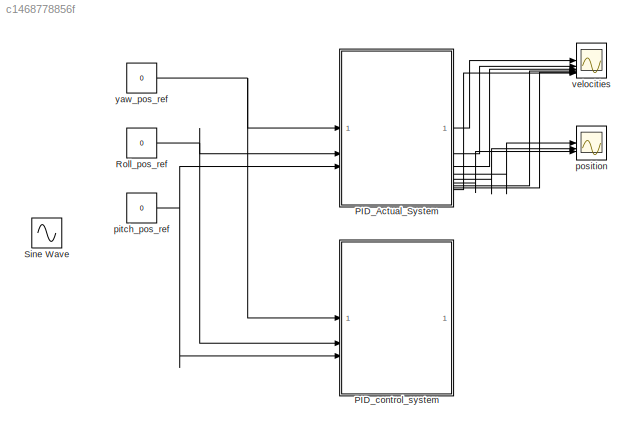
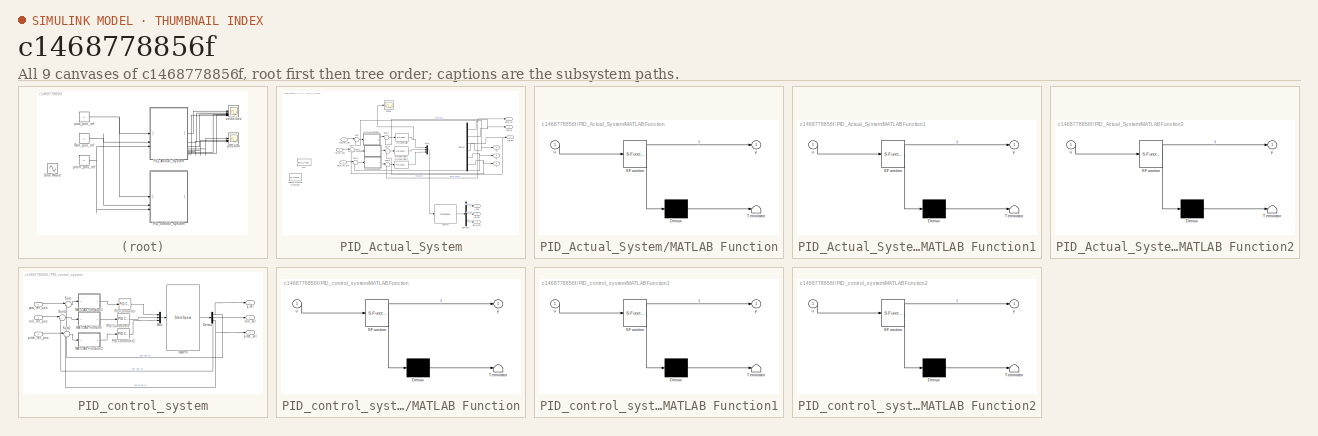
[diagram: thumbnail index - all 9 canvases of the model, root first then tree order]
MODEL slx_c1468778856f
KIND model
CONFIG AbsTol = auto
CONFIG EnableMultiTasking = off
CONFIG FixedStep = auto
CONFIG MaxStep = auto
CONFIG MinStep = auto
CONFIG RelTol = 1e-3
CONFIG SampleTimeConstraint = Unconstrained
CONFIG SolverName = VariableStepAuto
CONFIG StartTime = 0.0
CONFIG StopTime = 150
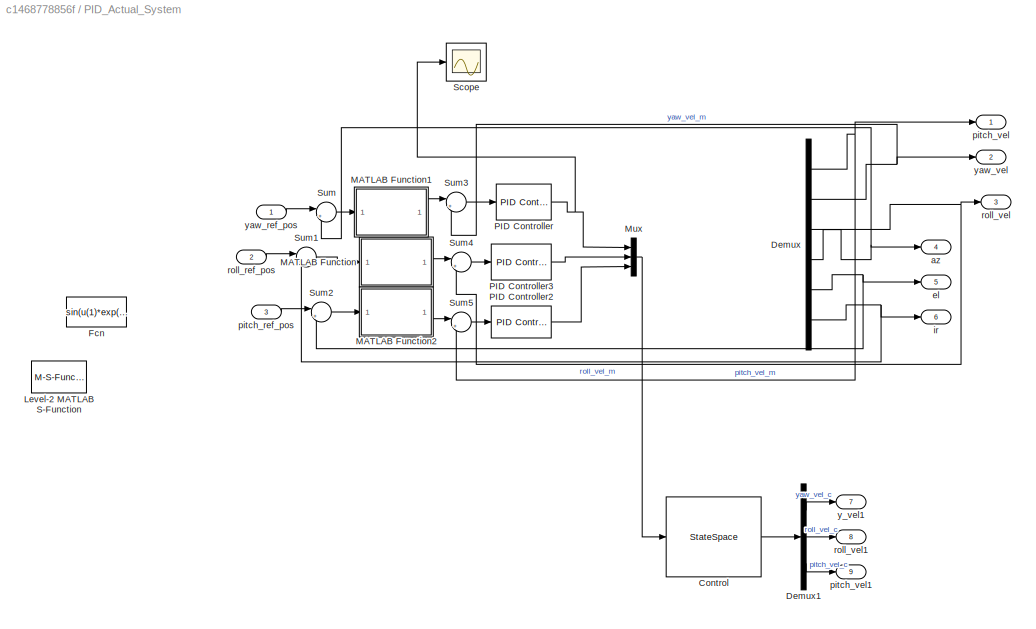
BLOCK [SubSystem] PID_Actual_System
BLOCK [StateSpace] PID_Actual_System/Control
  A = Ac
  B = Bc
  C = Cc
  D = Dc
  InitialCondition = zeros(6,1)
BLOCK [Demux] PID_Actual_System/Demux
  Outputs = 6
BLOCK [Demux] PID_Actual_System/Demux1
  Outputs = 3
BLOCK [Fcn] PID_Actual_System/Fcn
  Expr = sin(u(1)*exp(2.3*(-u(2))))
BLOCK [M-S-Function] PID_Actual_System/Level-2 MATLAB S-Function
BLOCK [SubSystem] PID_Actual_System/MATLAB Function
  ErrorFcn = Stateflow.Translate.translate
  LibrarySourceBlock = simulink/User-Defined\nFunctions/MATLAB Function
  PermitHierarchicalResolution = ExplicitOnly
  SFBlockType = MATLAB Function
  TreatAsAtomicUnit = on
BLOCK [Demux] PID_Actual_System/MATLAB Function/ Demux 
  Outputs = 1
BLOCK [S-Function] PID_Actual_System/MATLAB Function/ SFunction 
  EnableBusSupport = off
  FunctionName = sf_sfun
  PortCounts = [1 2]
  SFcnIsStateOwnerBlock = off
  SFunctionDeploymentMode = off
  Tag = Stateflow S-Function 2
BLOCK [Terminator] PID_Actual_System/MATLAB Function/ Terminator 
BLOCK [Inport] PID_Actual_System/MATLAB Function/u
BLOCK [Outport] PID_Actual_System/MATLAB Function/y
BLOCK [SubSystem] PID_Actual_System/MATLAB Function1
  ErrorFcn = Stateflow.Translate.translate
  LibrarySourceBlock = simulink/User-Defined\nFunctions/MATLAB Function
  PermitHierarchicalResolution = ExplicitOnly
  SFBlockType = MATLAB Function
  TreatAsAtomicUnit = on
BLOCK [Demux] PID_Actual_System/MATLAB Function1/ Demux 
  Outputs = 1
BLOCK [S-Function] PID_Actual_System/MATLAB Function1/ SFunction 
  EnableBusSupport = off
  FunctionName = sf_sfun
  PortCounts = [1 2]
  SFcnIsStateOwnerBlock = off
  SFunctionDeploymentMode = off
  Tag = Stateflow S-Function 1
BLOCK [Terminator] PID_Actual_System/MATLAB Function1/ Terminator 
BLOCK [Inport] PID_Actual_System/MATLAB Function1/u
BLOCK [Outport] PID_Actual_System/MATLAB Function1/y
BLOCK [SubSystem] PID_Actual_System/MATLAB Function2
  ErrorFcn = Stateflow.Translate.translate
  LibrarySourceBlock = simulink/User-Defined\nFunctions/MATLAB Function
  PermitHierarchicalResolution = ExplicitOnly
  SFBlockType = MATLAB Function
  TreatAsAtomicUnit = on
BLOCK [Demux] PID_Actual_System/MATLAB Function2/ Demux 
  Outputs = 1
BLOCK [S-Function] PID_Actual_System/MATLAB Function2/ SFunction 
  EnableBusSupport = off
  FunctionName = sf_sfun
  PortCounts = [1 2]
  SFcnIsStateOwnerBlock = off
  SFunctionDeploymentMode = off
  Tag = Stateflow S-Function 3
BLOCK [Terminator] PID_Actual_System/MATLAB Function2/ Terminator 
BLOCK [Inport] PID_Actual_System/MATLAB Function2/u
BLOCK [Outport] PID_Actual_System/MATLAB Function2/y
BLOCK [Mux] PID_Actual_System/Mux
  DisplayOption = bar
  Inputs = 3
BLOCK [Reference] PID_Actual_System/PID Controller  REF=slpidlib/PID Controller
  LibrarySourceBlock = simulink/Continuous/PID Controller
  SourceBlock = slpidlib/PID Controller
  SourceType = PID 1dof
BLOCK [Reference] PID_Actual_System/PID Controller2  REF=slpidlib/PID Controller
  LibrarySourceBlock = simulink/Continuous/PID Controller
  SourceBlock = slpidlib/PID Controller
  SourceType = PID 1dof
BLOCK [Reference] PID_Actual_System/PID Controller3  REF=slpidlib/PID Controller
  LibrarySourceBlock = simulink/Continuous/PID Controller
  SourceBlock = slpidlib/PID Controller
  SourceType = PID 1dof
BLOCK [Scope] PID_Actual_System/Scope
  Floating = off
  NumInputPorts = 1
  ScopeSpecificationString = Simulink.scopes.TimeScopeBlockCfg('CurrentConfiguration', extmgr.ConfigurationSet(extmgr.Configuration('Core','General UI',true),extmgr.Configuration('Core','Source UI',true),extmgr.Configuration('Sources','WiredSimulink',true,'DataLoggingVariableName','ScopeData2'),extmgr.Configuration('Visuals','Time Domain',true,'SerializedDisplays',{struct('MinYLimReal','-2.50005','MaxYLimReal','22.50001','YLa...<+1434ch>
BLOCK [Sum] PID_Actual_System/Sum
  Inputs = |+-
BLOCK [Sum] PID_Actual_System/Sum1
  Inputs = |+-
BLOCK [Sum] PID_Actual_System/Sum2
  Inputs = |+-
BLOCK [Sum] PID_Actual_System/Sum3
  Inputs = |+-
BLOCK [Sum] PID_Actual_System/Sum4
  Inputs = |+-
BLOCK [Sum] PID_Actual_System/Sum5
  Inputs = |+-
BLOCK [Outport] PID_Actual_System/az
  Port = 4
BLOCK [Outport] PID_Actual_System/el
  Port = 5
BLOCK [Outport] PID_Actual_System/ir
  Port = 6
BLOCK [Inport] PID_Actual_System/pitch_ref_pos
  Port = 3
BLOCK [Outport] PID_Actual_System/pitch_vel
BLOCK [Outport] PID_Actual_System/pitch_vel1
  Port = 9
BLOCK [Inport] PID_Actual_System/roll_ref_pos
  Port = 2
BLOCK [Outport] PID_Actual_System/roll_vel
  Port = 3
BLOCK [Outport] PID_Actual_System/roll_vel1
  Port = 8
BLOCK [Outport] PID_Actual_System/y_vel1
  Port = 7
BLOCK [Inport] PID_Actual_System/yaw_ref_pos
BLOCK [Outport] PID_Actual_System/yaw_vel
  Port = 2
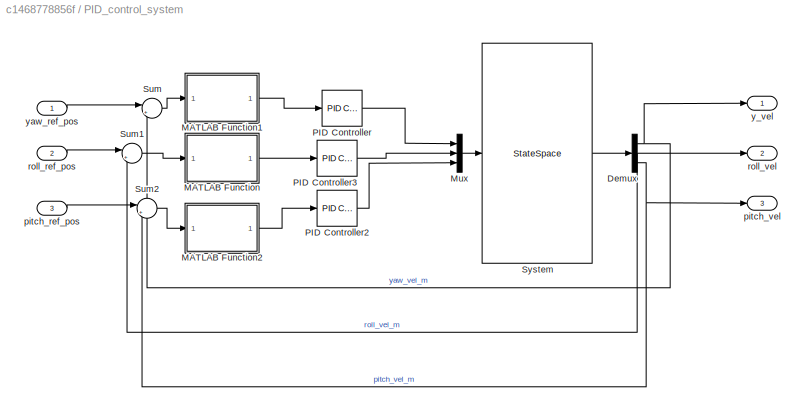
BLOCK [SubSystem] PID_control_system
  Commented = on
BLOCK [Demux] PID_control_system/Demux
  Outputs = 3
BLOCK [SubSystem] PID_control_system/MATLAB Function
  ErrorFcn = Stateflow.Translate.translate
  LibrarySourceBlock = simulink/User-Defined\nFunctions/MATLAB Function
  PermitHierarchicalResolution = ExplicitOnly
  SFBlockType = MATLAB Function
  TreatAsAtomicUnit = on
BLOCK [Demux] PID_control_system/MATLAB Function/ Demux 
  Outputs = 1
BLOCK [S-Function] PID_control_system/MATLAB Function/ SFunction 
  EnableBusSupport = off
  FunctionName = sf_sfun
  PortCounts = [1 2]
  SFcnIsStateOwnerBlock = off
  SFunctionDeploymentMode = off
  Tag = Stateflow S-Function 4
BLOCK [Terminator] PID_control_system/MATLAB Function/ Terminator 
BLOCK [Inport] PID_control_system/MATLAB Function/u
BLOCK [Outport] PID_control_system/MATLAB Function/y
BLOCK [SubSystem] PID_control_system/MATLAB Function1
  ErrorFcn = Stateflow.Translate.translate
  LibrarySourceBlock = simulink/User-Defined\nFunctions/MATLAB Function
  PermitHierarchicalResolution = ExplicitOnly
  SFBlockType = MATLAB Function
  TreatAsAtomicUnit = on
BLOCK [Demux] PID_control_system/MATLAB Function1/ Demux 
  Outputs = 1
BLOCK [S-Function] PID_control_system/MATLAB Function1/ SFunction 
  EnableBusSupport = off
  FunctionName = sf_sfun
  PortCounts = [1 2]
  SFcnIsStateOwnerBlock = off
  SFunctionDeploymentMode = off
  Tag = Stateflow S-Function 5
BLOCK [Terminator] PID_control_system/MATLAB Function1/ Terminator 
BLOCK [Inport] PID_control_system/MATLAB Function1/u
BLOCK [Outport] PID_control_system/MATLAB Function1/y
BLOCK [SubSystem] PID_control_system/MATLAB Function2
  ErrorFcn = Stateflow.Translate.translate
  LibrarySourceBlock = simulink/User-Defined\nFunctions/MATLAB Function
  PermitHierarchicalResolution = ExplicitOnly
  SFBlockType = MATLAB Function
  TreatAsAtomicUnit = on
BLOCK [Demux] PID_control_system/MATLAB Function2/ Demux 
  Outputs = 1
BLOCK [S-Function] PID_control_system/MATLAB Function2/ SFunction 
  EnableBusSupport = off
  FunctionName = sf_sfun
  PortCounts = [1 2]
  SFcnIsStateOwnerBlock = off
  SFunctionDeploymentMode = off
  Tag = Stateflow S-Function 6
BLOCK [Terminator] PID_control_system/MATLAB Function2/ Terminator 
BLOCK [Inport] PID_control_system/MATLAB Function2/u
BLOCK [Outport] PID_control_system/MATLAB Function2/y
BLOCK [Mux] PID_control_system/Mux
  DisplayOption = bar
  Inputs = 3
BLOCK [Reference] PID_control_system/PID Controller  REF=slpidlib/PID Controller
  LibrarySourceBlock = simulink/Continuous/PID Controller
  SourceBlock = slpidlib/PID Controller
  SourceType = PID 1dof
BLOCK [Reference] PID_control_system/PID Controller2  REF=slpidlib/PID Controller
  LibrarySourceBlock = simulink/Continuous/PID Controller
  SourceBlock = slpidlib/PID Controller
  SourceType = PID 1dof
BLOCK [Reference] PID_control_system/PID Controller3  REF=slpidlib/PID Controller
  LibrarySourceBlock = simulink/Continuous/PID Controller
  SourceBlock = slpidlib/PID Controller
  SourceType = PID 1dof
BLOCK [Sum] PID_control_system/Sum
  Inputs = |+-
BLOCK [Sum] PID_control_system/Sum1
  Inputs = |+-
BLOCK [Sum] PID_control_system/Sum2
  Inputs = |+-
BLOCK [StateSpace] PID_control_system/System
  A = Ac
  B = Bc
  C = Cc
  D = Dc
  InitialCondition = zeros(6,1)
BLOCK [Inport] PID_control_system/pitch_ref_pos
  Port = 3
BLOCK [Outport] PID_control_system/pitch_vel
  Port = 3
BLOCK [Inport] PID_control_system/roll_ref_pos
  Port = 2
BLOCK [Outport] PID_control_system/roll_vel
  Port = 2
BLOCK [Outport] PID_control_system/y_vel
BLOCK [Inport] PID_control_system/yaw_ref_pos
BLOCK [Constant] Roll_pos_ref
  Value = 0
BLOCK [Sin] Sine Wave
  IOType = siggen
  SampleTime = 0
BLOCK [Constant] pitch_pos_ref
  Value = 0
BLOCK [Scope] position
  Floating = off
  NumInputPorts = 3
  ScopeSpecificationString = Simulink.scopes.TimeScopeBlockCfg('CurrentConfiguration', extmgr.ConfigurationSet(extmgr.Configuration('Core','General UI',true),extmgr.Configuration('Core','Source UI',true),extmgr.Configuration('Sources','WiredSimulink',true,'DataLoggingVariableName','ScopeData1'),extmgr.Configuration('Visuals','Time Domain',true,'SerializedDisplays',{struct('MinYLimReal','-34.6309','MaxYLimReal','311.67571','YL...<+1471ch>
BLOCK [Scope] velocities
  Floating = off
  NumInputPorts = 6
  ScopeSpecificationString = Simulink.scopes.TimeScopeBlockCfg('CurrentConfiguration', extmgr.ConfigurationSet(extmgr.Configuration('Core','General UI',true),extmgr.Configuration('Core','Source UI',true),extmgr.Configuration('Sources','WiredSimulink',true),extmgr.Configuration('Visuals','Time Domain',true,'SerializedDisplays',{struct('MinYLimReal','-6.41591','MaxYLimReal','0.71999','YLabelReal','','MinYLimMag','0.00000','MaxY...<+1356ch>
BLOCK [Constant] yaw_pos_ref
  Value = 0
LINE PID_Actual_System/Control:1 -> PID_Actual_System/Demux1:1
LINE PID_Actual_System/Demux1:1 -> PID_Actual_System/y_vel1:1
LINE PID_Actual_System/Demux1:2 -> PID_Actual_System/roll_vel1:1
LINE PID_Actual_System/Demux1:3 -> PID_Actual_System/pitch_vel1:1
NET PID_Actual_System/Demux:1 -> PID_Actual_System/Sum5:2, PID_Actual_System/pitch_vel:1
NET PID_Actual_System/Demux:2 -> PID_Actual_System/Sum3:2, PID_Actual_System/yaw_vel:1
NET PID_Actual_System/Demux:3 -> PID_Actual_System/Sum4:2, PID_Actual_System/roll_vel:1
NET PID_Actual_System/Demux:4 -> PID_Actual_System/Sum:2, PID_Actual_System/az:1
NET PID_Actual_System/Demux:5 -> PID_Actual_System/Sum2:2, PID_Actual_System/el:1
NET PID_Actual_System/Demux:6 -> PID_Actual_System/Sum1:2, PID_Actual_System/ir:1
LINE PID_Actual_System/MATLAB Function1:1 -> PID_Actual_System/Sum3:1
LINE PID_Actual_System/MATLAB Function2:1 -> PID_Actual_System/Sum5:1
LINE PID_Actual_System/MATLAB Function:1 -> PID_Actual_System/Sum4:1
LINE PID_Actual_System/Mux:1 -> PID_Actual_System/Control:1
LINE PID_Actual_System/PID Controller2:1 -> PID_Actual_System/Mux:3
LINE PID_Actual_System/PID Controller3:1 -> PID_Actual_System/Mux:2
NET PID_Actual_System/PID Controller:1 -> PID_Actual_System/Mux:1, PID_Actual_System/Scope:1
LINE PID_Actual_System/Sum1:1 -> PID_Actual_System/MATLAB Function:1
LINE PID_Actual_System/Sum2:1 -> PID_Actual_System/MATLAB Function2:1
LINE PID_Actual_System/Sum3:1 -> PID_Actual_System/PID Controller:1
LINE PID_Actual_System/Sum4:1 -> PID_Actual_System/PID Controller3:1
LINE PID_Actual_System/Sum5:1 -> PID_Actual_System/PID Controller2:1
LINE PID_Actual_System/Sum:1 -> PID_Actual_System/MATLAB Function1:1
LINE PID_Actual_System/pitch_ref_pos:1 -> PID_Actual_System/Sum2:1
LINE PID_Actual_System/roll_ref_pos:1 -> PID_Actual_System/Sum1:1
LINE PID_Actual_System/yaw_ref_pos:1 -> PID_Actual_System/Sum:1
LINE PID_Actual_System:1 -> velocities:1
LINE PID_Actual_System:2 -> velocities:2
LINE PID_Actual_System:3 -> velocities:3
LINE PID_Actual_System:4 -> position:1
LINE PID_Actual_System:5 -> position:2
LINE PID_Actual_System:6 -> position:3
LINE PID_Actual_System:7 -> velocities:4
LINE PID_Actual_System:8 -> velocities:5
LINE PID_Actual_System:9 -> velocities:6
NET PID_control_system/Demux:1 -> PID_control_system/Sum:2, PID_control_system/y_vel:1
NET PID_control_system/Demux:2 -> PID_control_system/Sum1:2, PID_control_system/roll_vel:1
NET PID_control_system/Demux:3 -> PID_control_system/Sum2:2, PID_control_system/pitch_vel:1
LINE PID_control_system/MATLAB Function1:1 -> PID_control_system/PID Controller:1
LINE PID_control_system/MATLAB Function2:1 -> PID_control_system/PID Controller2:1
LINE PID_control_system/MATLAB Function:1 -> PID_control_system/PID Controller3:1
LINE PID_control_system/Mux:1 -> PID_control_system/System:1
LINE PID_control_system/PID Controller2:1 -> PID_control_system/Mux:3
LINE PID_control_system/PID Controller3:1 -> PID_control_system/Mux:2
LINE PID_control_system/PID Controller:1 -> PID_control_system/Mux:1
LINE PID_control_system/Sum1:1 -> PID_control_system/MATLAB Function:1
LINE PID_control_system/Sum2:1 -> PID_control_system/MATLAB Function2:1
LINE PID_control_system/Sum:1 -> PID_control_system/MATLAB Function1:1
LINE PID_control_system/System:1 -> PID_control_system/Demux:1
LINE PID_control_system/pitch_ref_pos:1 -> PID_control_system/Sum2:1
LINE PID_control_system/roll_ref_pos:1 -> PID_control_system/Sum1:1
LINE PID_control_system/yaw_ref_pos:1 -> PID_control_system/Sum:1
NET Roll_pos_ref:1 -> PID_Actual_System:2, PID_control_system:2
NET pitch_pos_ref:1 -> PID_Actual_System:3, PID_control_system:3
NET yaw_pos_ref:1 -> PID_Actual_System:1, PID_control_system:1
note: NET lines group one-source signal fan-out (src -> all destinations, sorted); 1:1 wires keep LINE
CHART PID_Actual_System/MATLAB Function states=1 transitions=1
  STATE_LABEL 'eML_blk_kernel()'
  STATE_LABEL 'SCRIPT:\nfunction y = roll_erf(u)\n    max_v = 0.0005;\n    slope = 0.5*150;\n    y = -max_v * sign(u) * erf(slope*abs(u));\n\n'
CHART PID_Actual_System/MATLAB Function2 states=1 transitions=1
  STATE_LABEL 'eML_blk_kernel()'
  STATE_LABEL 'SCRIPT:\nfunction y = pitch_erf(u)\n    max_v = 0.05;\n    slope = 10*.025;\n    y = -max_v * sign(u) * erf(slope*abs(u));\n\n'
CHART PID_control_system/MATLAB Function states=1 transitions=1
  STATE_LABEL 'eML_blk_kernel()'
  STATE_LABEL 'SCRIPT:\nfunction y = roll_erf(u)\n    max_v = 0.0005;\n    slope = 0.5*150;\n    y = max_v * sign(u) * erf(slope*abs(u));\n\n'
CHART PID_control_system/MATLAB Function1 states=1 transitions=1
  STATE_LABEL 'eML_blk_kernel()'
  STATE_LABEL 'SCRIPT:\nfunction y = yaw_erf(u)\n    max_v = .01;\n    slope = 4;\n    y = max_v * sign(u) * erf(slope*abs(u));\n\n'
CHART PID_control_system/MATLAB Function2 states=1 transitions=1
  STATE_LABEL 'eML_blk_kernel()'
  STATE_LABEL 'SCRIPT:\nfunction y = pitch_erf(u)\n    max_v = 0.05;\n    slope = 10*.025;\n    y = max_v * sign(u) * erf(slope*abs(u));\n\n'
CHART PID_Actual_System/MATLAB Function1 states=1 transitions=1
  STATE_LABEL 'eML_blk_kernel()'
  STATE_LABEL 'SCRIPT:\nfunction y = yaw_erf(u)\n    max_v = .01;\n    slope = 4;\n    y = max_v * sign(u) * erf(slope*abs(u));\n\n'
CHART  states=0 transitions=0
CHART  states=0 transitions=0
CHART  states=0 transitions=0
CHART  states=0 transitions=0
CHART  states=0 transitions=0
CHART  states=0 transitions=0
